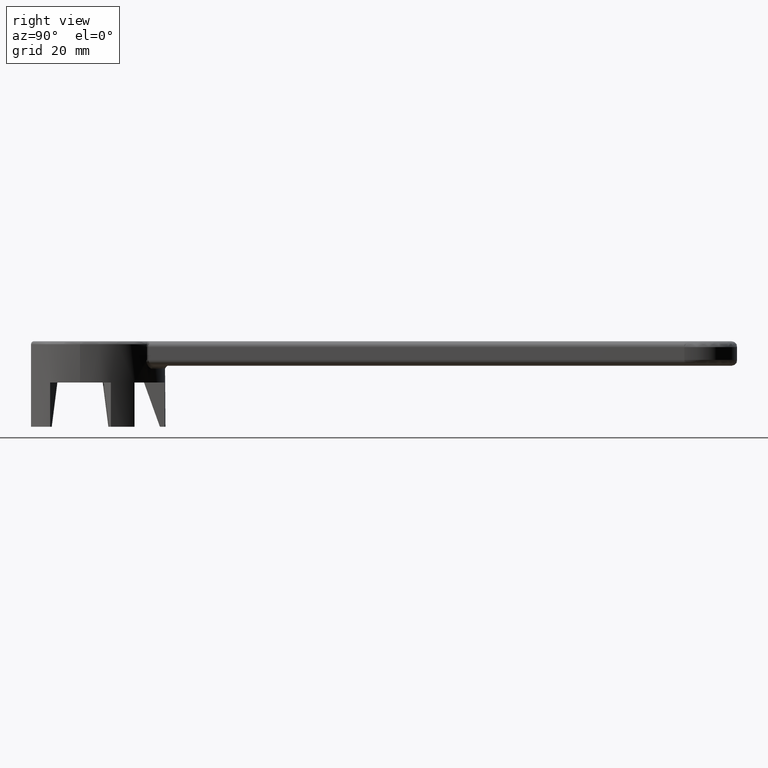
[diagram: clean part render]
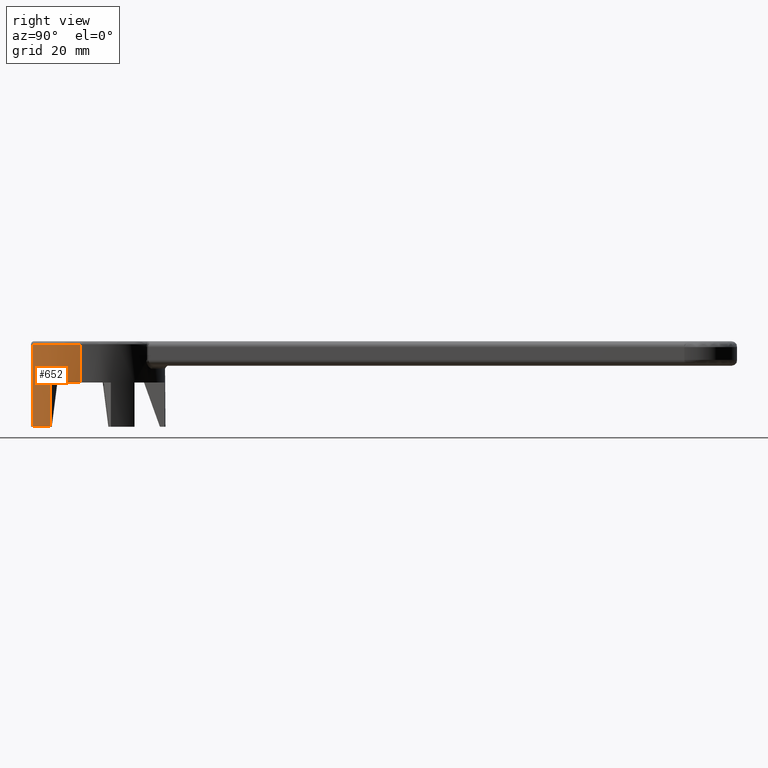
[diagram: same view with one face highlighted and labeled with its STEP entity id]
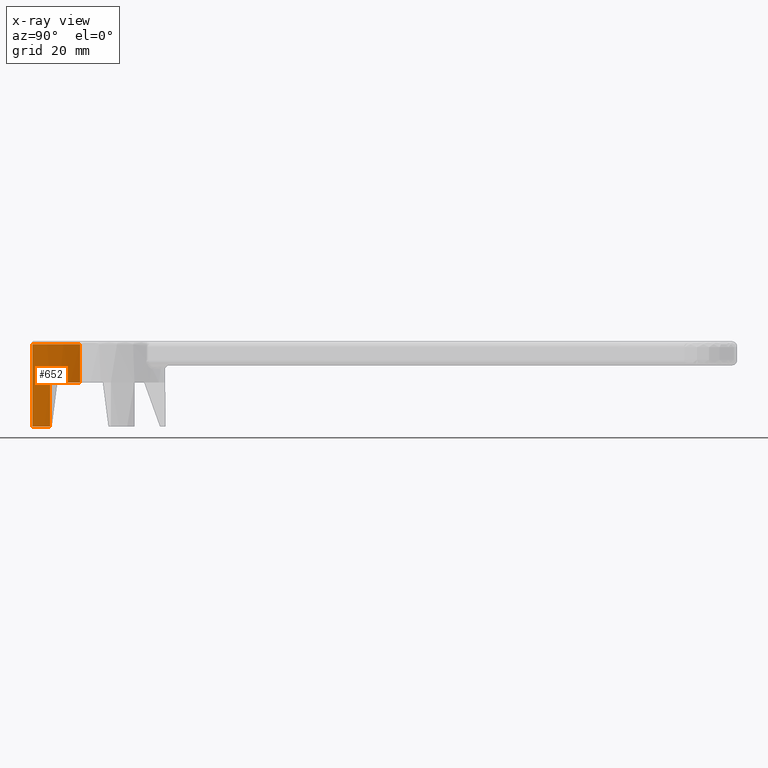
[diagram: x-ray of the same camera — body ghosted, the highlighted face saturated]
A machine part, right view. The second image highlights one B-rep face of the part: STEP entity #652.
The next image is the same camera in x-ray: the body ghosted, the highlighted face saturated — about 0% of this face is hidden behind the body in this view.
In plain terms, the highlighted cylindrical surface (partial cylindrical patch) has radius 14.5 mm, axis along (0, -0, 1).
Its self-contained STEP definition (entity closure, byte-faithful):
#25 = DIRECTION ( 'NONE',  ( 1.000000000000000000, 0.0000000000000000000, 0.0000000000000000000 ) ) ;
#57 = CARTESIAN_POINT ( 'NONE',  ( 12.02765147977303100, -8.098493679583795000, -0.5000000025081764400 ) ) ;
#59 = LINE ( 'NONE', #307, #1065 ) ;
#85 = FACE_OUTER_BOUND ( 'NONE', #2540, .T. ) ;
#94 = VERTEX_POINT ( 'NONE', #57 ) ;
#109 = CARTESIAN_POINT ( 'NONE',  ( 13.58416327230100500, -5.071539035782775400, -7.500000000000000900 ) ) ;
#145 = VERTEX_POINT ( 'NONE', #1892 ) ;
#150 = LINE ( 'NONE', #109, #549 ) ;
#152 = CARTESIAN_POINT ( 'NONE',  ( 14.50000000000000000, 0.0000000000000000000, -6.999999995999997900 ) ) ;
#175 = CIRCLE ( 'NONE', #2287, 14.50000000000000000 ) ;
#307 = CARTESIAN_POINT ( 'NONE',  ( 12.02765148040441200, -8.098493678822348900, -7.500000000000000900 ) ) ;
#332 = VERTEX_POINT ( 'NONE', #1560 ) ;
#373 = CARTESIAN_POINT ( 'NONE',  ( 14.50000000000000000, 0.0000000000000000000, -14.50000000000000000 ) ) ;
#401 = CARTESIAN_POINT ( 'NONE',  ( 0.0000000000000000000, 0.0000000000000000000, -0.5000000000000004400 ) ) ;
#449 = CARTESIAN_POINT ( 'NONE',  ( 14.50000000000000000, 0.0000000000000000000, -0.5000000000000004400 ) ) ;
#457 = ORIENTED_EDGE ( 'NONE', *, *, #1619, .F. ) ;
#547 = DIRECTION ( 'NONE',  ( 1.000000000000000000, 0.0000000000000000000, 0.0000000000000000000 ) ) ;
#549 = VECTOR ( 'NONE', #1713, 1000.000000000000000 ) ;
#570 = EDGE_CURVE ( 'NONE', #1059, #2134, #1816, .T. ) ;
#596 = DIRECTION ( 'NONE',  ( 1.000000000000000000, 0.0000000000000000000, 2.990902544787598700E-017 ) ) ;
#652 = ADVANCED_FACE ( 'NONE', ( #85 ), #1620, .T. ) ;
#703 = DIRECTION ( 'NONE',  ( 0.0000000000000000000, 0.0000000000000000000, 1.000000000000000000 ) ) ;
#728 = VECTOR ( 'NONE', #2672, 1000.000000000000000 ) ;
#782 = DIRECTION ( 'NONE',  ( 0.0000000000000000000, -0.0000000000000000000, 1.000000000000000000 ) ) ;
#856 = CARTESIAN_POINT ( 'NONE',  ( 0.0000000000000000000, 0.0000000000000000000, -6.999999995999997900 ) ) ;
#959 = CARTESIAN_POINT ( 'NONE',  ( 13.58416327318851400, -5.071539033405578300, -14.49999999999999800 ) ) ;
#1034 = VERTEX_POINT ( 'NONE', #959 ) ;
#1059 = VERTEX_POINT ( 'NONE', #152 ) ;
#1061 = DIRECTION ( 'NONE',  ( 1.000000000000000000, 0.0000000000000000000, 0.0000000000000000000 ) ) ;
#1065 = VECTOR ( 'NONE', #703, 1000.000000000000000 ) ;
#1224 = CIRCLE ( 'NONE', #1744, 14.50000000000000000 ) ;
#1239 = DIRECTION ( 'NONE',  ( -0.0000000000000000000, 0.0000000000000000000, -1.000000000000000000 ) ) ;
#1394 = ORIENTED_EDGE ( 'NONE', *, *, #2257, .F. ) ;
#1451 = ORIENTED_EDGE ( 'NONE', *, *, #1550, .F. ) ;
#1550 = EDGE_CURVE ( 'NONE', #94, #2134, #1841, .T. ) ;
#1560 = CARTESIAN_POINT ( 'NONE',  ( 12.02765147984754400, -8.098493679649394000, -14.49999999999999800 ) ) ;
#1619 = EDGE_CURVE ( 'NONE', #1034, #332, #175, .T. ) ;
#1620 = CYLINDRICAL_SURFACE ( 'NONE', #1771, 14.50000000000000000 ) ;
#1713 = DIRECTION ( 'NONE',  ( -0.0000000000000000000, -0.0000000000000000000, -1.000000000000000000 ) ) ;
#1714 = AXIS2_PLACEMENT_3D ( 'NONE', #401, #1815, #596 ) ;
#1744 = AXIS2_PLACEMENT_3D ( 'NONE', #856, #2305, #1061 ) ;
#1771 = AXIS2_PLACEMENT_3D ( 'NONE', #2563, #782, #547 ) ;
#1815 = DIRECTION ( 'NONE',  ( 0.0000000000000000000, 0.0000000000000000000, 1.000000000000000000 ) ) ;
#1816 = LINE ( 'NONE', #373, #728 ) ;
#1841 = CIRCLE ( 'NONE', #1714, 14.49999999999999800 ) ;
#1892 = CARTESIAN_POINT ( 'NONE',  ( 13.58416327318851400, -5.071539033405578300, -6.999999995999997900 ) ) ;
#1925 = ORIENTED_EDGE ( 'NONE', *, *, #2140, .F. ) ;
#1965 = EDGE_CURVE ( 'NONE', #332, #94, #59, .T. ) ;
#2134 = VERTEX_POINT ( 'NONE', #449 ) ;
#2140 = EDGE_CURVE ( 'NONE', #1059, #145, #1224, .T. ) ;
#2257 = EDGE_CURVE ( 'NONE', #145, #1034, #150, .T. ) ;
#2287 = AXIS2_PLACEMENT_3D ( 'NONE', #2494, #1239, #25 ) ;
#2305 = DIRECTION ( 'NONE',  ( -0.0000000000000000000, 0.0000000000000000000, -1.000000000000000000 ) ) ;
#2364 = ORIENTED_EDGE ( 'NONE', *, *, #570, .T. ) ;
#2494 = CARTESIAN_POINT ( 'NONE',  ( 0.0000000000000000000, 0.0000000000000000000, -14.49999999999999800 ) ) ;
#2540 = EDGE_LOOP ( 'NONE', ( #1925, #2364, #1451, #2599, #457, #1394 ) ) ;
#2563 = CARTESIAN_POINT ( 'NONE',  ( 0.0000000000000000000, 0.0000000000000000000, -14.50000000000000000 ) ) ;
#2599 = ORIENTED_EDGE ( 'NONE', *, *, #1965, .F. ) ;
#2672 = DIRECTION ( 'NONE',  ( 0.0000000000000000000, -0.0000000000000000000, 1.000000000000000000 ) ) ;